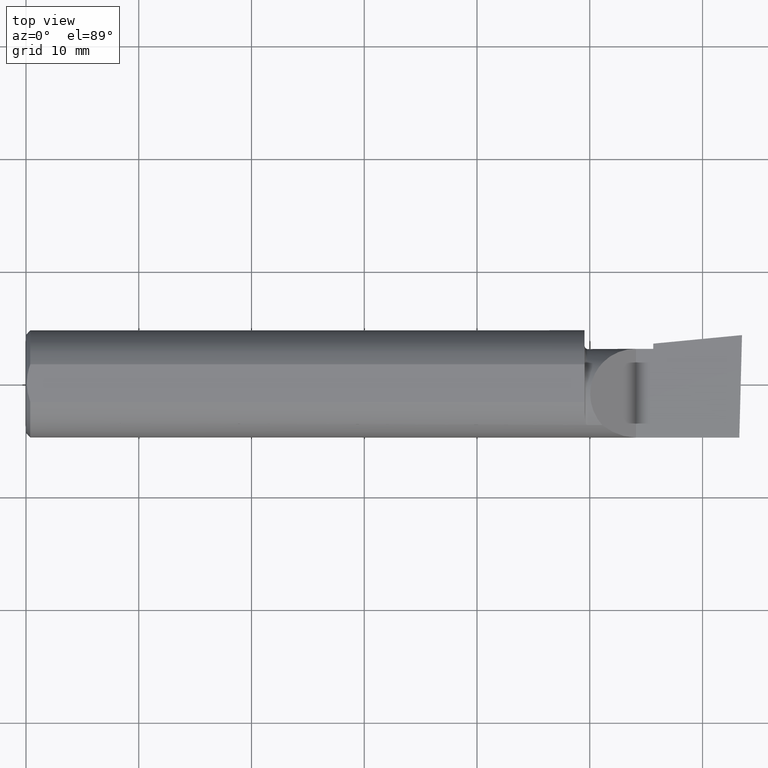
[diagram: clean part render]
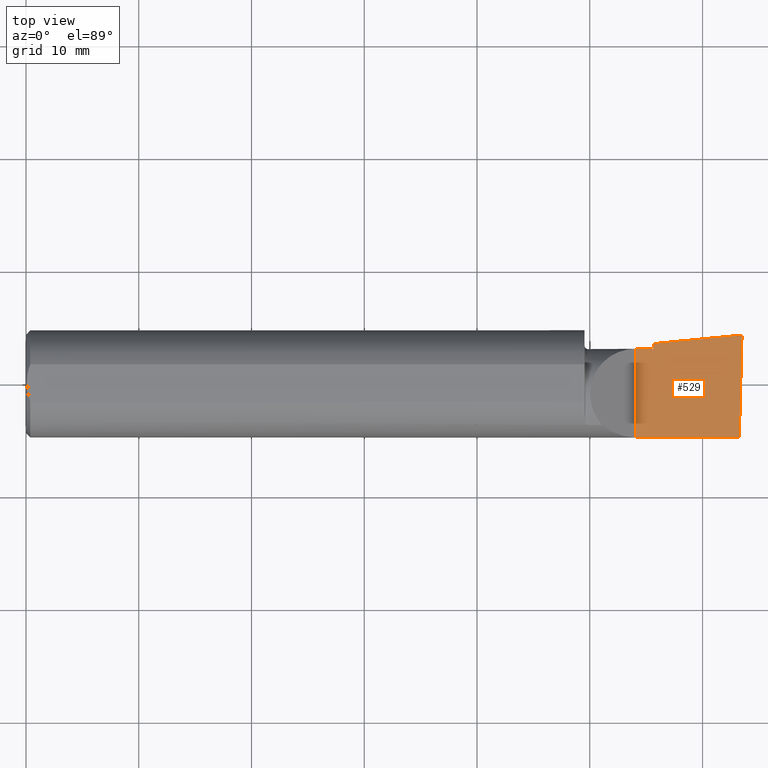
[diagram: same view with one face highlighted and labeled with its STEP entity id]
A machine part, top view. The second image highlights one B-rep face of the part: STEP entity #529.
In plain terms, the highlighted planar face has unit normal (-0, 0, -1).
Its self-contained STEP definition (entity closure, byte-faithful):
#3 = ORIENTED_EDGE ( 'NONE', *, *, #236, .F. ) ;
#24 = CARTESIAN_POINT ( 'NONE',  ( 2.488992440003207296, -0.2497117568972554158, 6.943408617627042702E-17 ) ) ;
#27 = CARTESIAN_POINT ( 'NONE',  ( 2.190000000000000391, -0.2500000000000000555, 1.003418815229743348E-16 ) ) ;
#31 = EDGE_LOOP ( 'NONE', ( #238, #564, #476, #458, #3, #97 ) ) ;
#33 = DIRECTION ( 'NONE',  ( -1.000000000000000000, 0.000000000000000000, 1.033731667140896077E-16 ) ) ;
#37 = CARTESIAN_POINT ( 'NONE',  ( 3.377502344341257155E-32, -0.1873499999999999610, 3.267291166268304703E-16 ) ) ;
#73 = VERTEX_POINT ( 'NONE', #506 ) ;
#81 = CARTESIAN_POINT ( 'NONE',  ( 2.190000000000000391, 0.1408003950587675135, 3.244069492476312449E-16 ) ) ;
#84 = CARTESIAN_POINT ( 'NONE',  ( 2.500000000000000000, -0.2500000000000000555, 6.829619984160658046E-17 ) ) ;
#91 = VECTOR ( 'NONE', #294, 39.37007874015748143 ) ;
#95 = EDGE_CURVE ( 'NONE', #483, #196, #599, .T. ) ;
#97 = ORIENTED_EDGE ( 'NONE', *, *, #546, .F. ) ;
#104 = LINE ( 'NONE', #37, #360 ) ;
#115 = FACE_OUTER_BOUND ( 'NONE', #31, .T. ) ;
#124 = CARTESIAN_POINT ( 'NONE',  ( 2.129999999999999893, -0.2500000000000000555, 1.065442715258197396E-16 ) ) ;
#130 = VERTEX_POINT ( 'NONE', #176 ) ;
#150 = CARTESIAN_POINT ( 'NONE',  ( 2.500000000000033307, 0.1706500000000319150, 9.332649030152475688E-14 ) ) ;
#176 = CARTESIAN_POINT ( 'NONE',  ( 2.129999999999999893, 0.1226499999999999535, 1.065442715258197396E-16 ) ) ;
#196 = VERTEX_POINT ( 'NONE', #150 ) ;
#215 = EDGE_CURVE ( 'NONE', #483, #282, #104, .T. ) ;
#231 = DIRECTION ( 'NONE',  ( -1.000000000000000000, -0.000000000000000000, -0.000000000000000000 ) ) ;
#236 = EDGE_CURVE ( 'NONE', #130, #73, #580, .T. ) ;
#238 = ORIENTED_EDGE ( 'NONE', *, *, #215, .F. ) ;
#270 = DIRECTION ( 'NONE',  ( -0.000000000000000000, 1.000000000000000000, -0.000000000000000000 ) ) ;
#276 = DIRECTION ( 'NONE',  ( 0.02617694830791441468, 0.9996573249755561497, -2.665804247647986508E-18 ) ) ;
#278 = VECTOR ( 'NONE', #465, 39.37007874015748143 ) ;
#282 = VERTEX_POINT ( 'NONE', #626 ) ;
#288 = VECTOR ( 'NONE', #577, 39.37007874015748143 ) ;
#294 = DIRECTION ( 'NONE',  ( 0.9953961983671787417, 0.09584575252022464742, -1.028972571603813720E-16 ) ) ;
#315 = LINE ( 'NONE', #124, #384 ) ;
#348 = EDGE_CURVE ( 'NONE', #498, #196, #454, .T. ) ;
#360 = VECTOR ( 'NONE', #231, 39.37007874015748143 ) ;
#363 = LINE ( 'NONE', #27, #278 ) ;
#379 = CARTESIAN_POINT ( 'NONE',  ( 1.093080678464946361E-18, 0.1226499999999998841, 3.267291166268304703E-16 ) ) ;
#384 = VECTOR ( 'NONE', #270, 39.37007874015748143 ) ;
#417 = PLANE ( 'NONE',  #561 ) ;
#452 = VECTOR ( 'NONE', #276, 39.37007874015748854 ) ;
#454 = LINE ( 'NONE', #494, #91 ) ;
#458 = ORIENTED_EDGE ( 'NONE', *, *, #581, .F. ) ;
#465 = DIRECTION ( 'NONE',  ( 6.829619984160658816E-18, 1.000000000000000000, -7.059994452165177242E-34 ) ) ;
#476 = ORIENTED_EDGE ( 'NONE', *, *, #348, .F. ) ;
#483 = VERTEX_POINT ( 'NONE', #515 ) ;
#494 = CARTESIAN_POINT ( 'NONE',  ( 0.3393181374772709646, -0.03739999999999999575, 2.916527262322781592E-16 ) ) ;
#498 = VERTEX_POINT ( 'NONE', #81 ) ;
#503 = DIRECTION ( 'NONE',  ( -1.033731667140896077E-16, 0.000000000000000000, -1.000000000000000000 ) ) ;
#506 = CARTESIAN_POINT ( 'NONE',  ( 2.189999999999999947, 0.1226499999999998980, 3.267291166268305196E-16 ) ) ;
#515 = CARTESIAN_POINT ( 'NONE',  ( 2.490625440078237940, -0.1873499999999999888, 6.926778495256704501E-17 ) ) ;
#529 = ADVANCED_FACE ( 'NONE', ( #115 ), #417, .F. ) ;
#546 = EDGE_CURVE ( 'NONE', #282, #130, #315, .T. ) ;
#561 = AXIS2_PLACEMENT_3D ( 'NONE', #84, #503, #33 ) ;
#564 = ORIENTED_EDGE ( 'NONE', *, *, #95, .T. ) ;
#577 = DIRECTION ( 'NONE',  ( 1.000000000000000000, -6.829619984160658046E-18, 0.000000000000000000 ) ) ;
#580 = LINE ( 'NONE', #379, #288 ) ;
#581 = EDGE_CURVE ( 'NONE', #73, #498, #363, .T. ) ;
#599 = LINE ( 'NONE', #24, #452 ) ;
#626 = CARTESIAN_POINT ( 'NONE',  ( 2.129999999999999893, -0.1873499999999999888, 1.065442715258197396E-16 ) ) ;